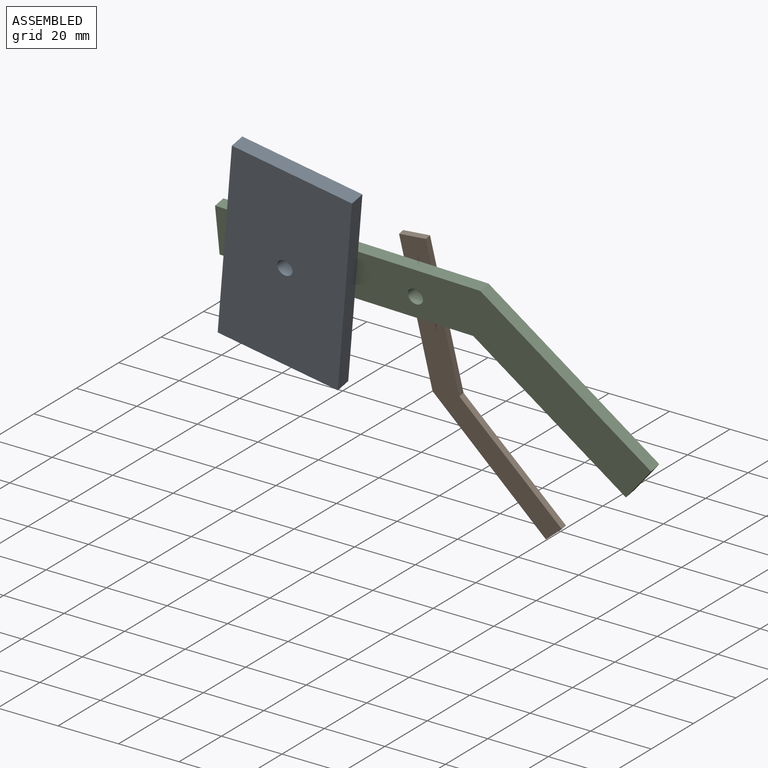
[diagram: assembled view]
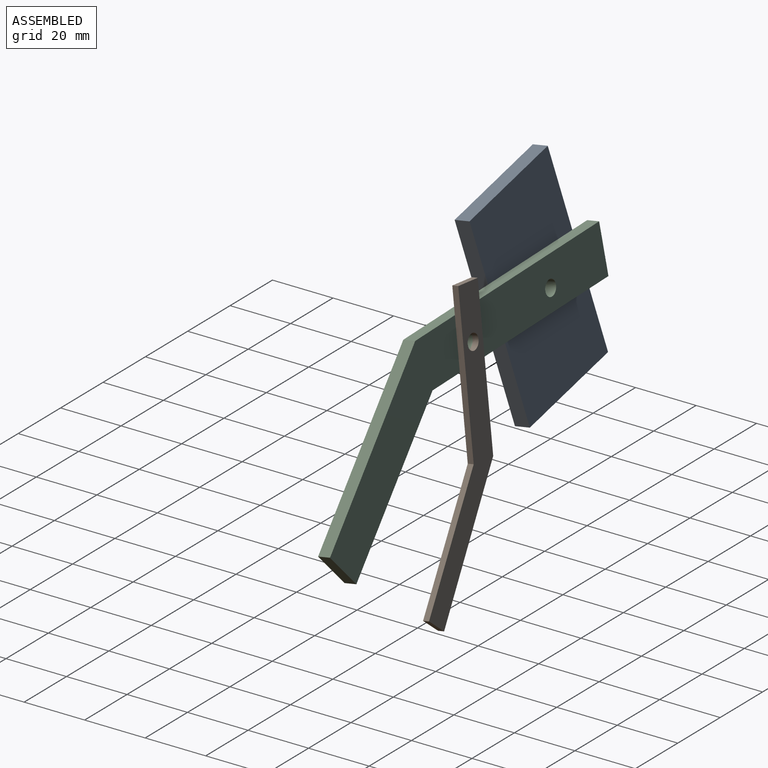
[diagram: assembled view, second angle]
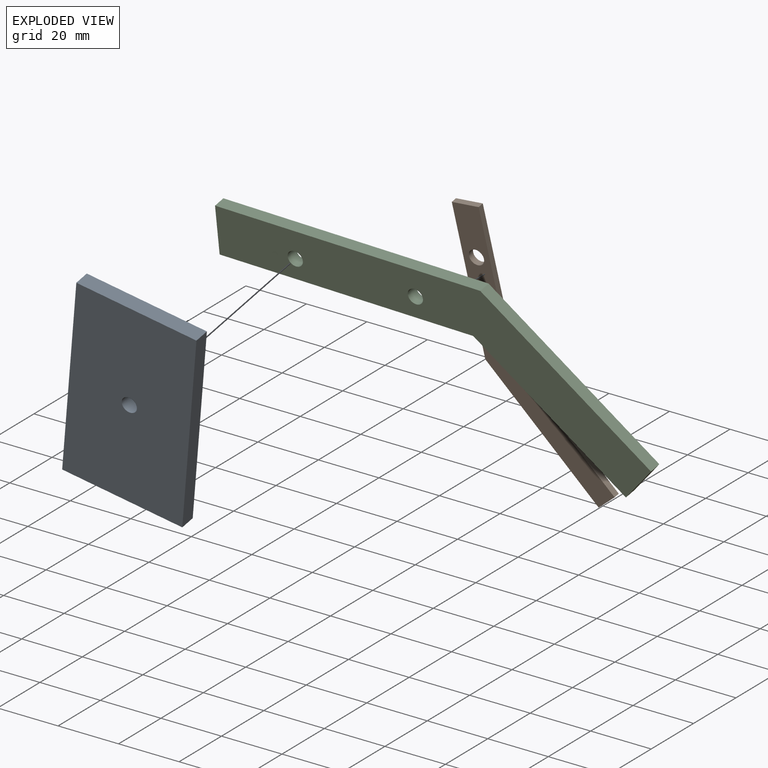
[diagram: exploded view]
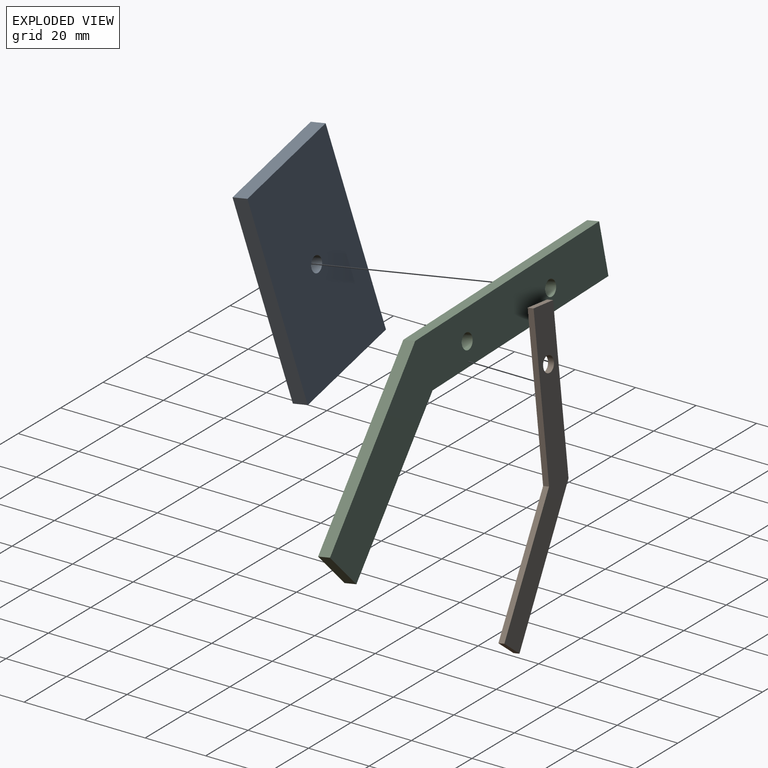
[diagram: exploded view, second angle]
ASSEMBLY  parts=3 mates=2
PART A: 7 faces, bbox 39.5x5x65.6 mm
  f0: plane 39.5x5mm, normal (0,0,-1), area 197.5mm2, adj f1,f4,f5,f6
  f1: plane 65.58x5mm, normal (1,0,0), area 327.9mm2, adj f0,f2,f5,f6
  f2: plane 39.5x5mm, normal (0,0,1), area 197.5mm2, adj f1,f4,f5,f6
  f3: cylinder r=2.5mm len=5mm, axis (0,1,0), area 78.5mm2, adj f5,f6
  f4: plane 65.58x5mm, normal (-1,0,0), area 327.9mm2, adj f0,f2,f5,f6
  f5: plane 65.58x39.5mm, normal (0,-1,0), area 2570.7mm2, adj f0,f1,f2,f3,f4
  f6: plane 65.58x39.5mm, normal (0,1,0), area 2570.7mm2, adj f0,f1,f2,f3,f4
PART B: 9 faces, bbox 91.8x2x35 mm
  f0: plane 50x2mm, normal (0,0,-1), area 100mm2, adj f1,f6,f7,f8
  f1: plane 9.02x2mm, normal (1,0,0), area 18mm2, adj f0,f2,f7,f8
  f2: plane 50x2mm, normal (0,0,1), area 100mm2, adj f1,f3,f7,f8
  f3: plane 37.35x26.03mm, normal (0.57,0,0.82), area 91.1mm2, adj f2,f4,f7,f8
  f4: plane 6.35x4.42mm, normal (-0.82,0,0.57), area 15.5mm2, adj f3,f6,f7,f8
  f5: cylinder r=2.5mm len=5mm, axis (0,1,0), area 31.4mm2, adj f7,f8
  f6: plane 41.78x28.7mm, normal (-0.57,0,-0.82), area 101.4mm2, adj f0,f4,f7,f8
  f7: plane 91.78x35.05mm, normal (0,-1,0), area 795.7mm2, adj f0,f1,f2,f3,f4,f5,f6
  f8: plane 91.78x35.05mm, normal (0,1,0), area 795.7mm2, adj f0,f1,f2,f3,f4,f5,f6
PART C: 10 faces, bbox 139.6x4x54 mm
  f0: plane 52.24x42.52mm, normal (-0.63,0,0.78), area 269.4mm2, adj f1,f5,f6,f7
  f1: plane 11.5x9.36mm, normal (-0.78,0,-0.63), area 59.3mm2, adj f0,f2,f6,f7
  f2: plane 46.69x38.01mm, normal (0.63,0,-0.78), area 240.8mm2, adj f1,f3,f6,f7
  f3: plane 83.58x4mm, normal (0,0,-1), area 334.3mm2, adj f2,f4,f6,f7
  f4: plane 16.01x4mm, normal (1,0,0), area 64mm2, adj f3,f5,f6,f7
  f5: plane 87.39x4mm, normal (0,0,1), area 349.6mm2, adj f0,f4,f6,f7
  f6: plane 139.63x54.01mm, normal (0,-1,0), area 2274.4mm2, adj f0,f1,f2,f3,f4,f5,f8,f9
  f7: plane 139.63x54.01mm, normal (0,1,0), area 2274.4mm2, adj f0,f1,f2,f3,f4,f5,f8,f9
  f8: cylinder r=2.5mm len=5mm, axis (0,-1,0), area 62.8mm2, adj f6,f7
  f9: cylinder r=2.5mm len=5mm, axis (0,-1,0), area 62.8mm2, adj f6,f7
PLACE A rot(axis=(-0.1,0.09,-0.99),179deg) t=(11.76,-32.63,-83.58)mm fixed
PLACE B rot(axis=(-0.67,0.06,-0.74),173.3deg) t=(52.18,-22.22,-90.81)mm
PLACE C rot(axis=(-0.01,0.09,-1),179.9deg) t=(60.23,-21.71,-116.74)mm
MATE revolute A.f3 <-> C.f9  axis (0,0.98,0.17) through (11.76,-27.71,-82.71)mm
MATE revolute B.f5 <-> C.f8  axis (0,-0.98,-0.17) through (51.36,-23.63,-82.79)mm
